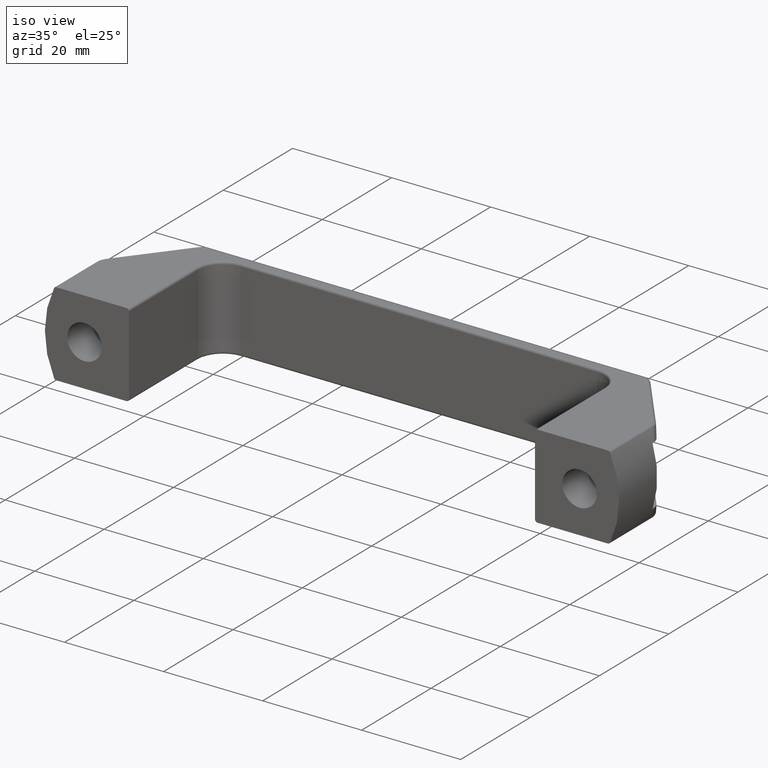
[diagram: clean part render]
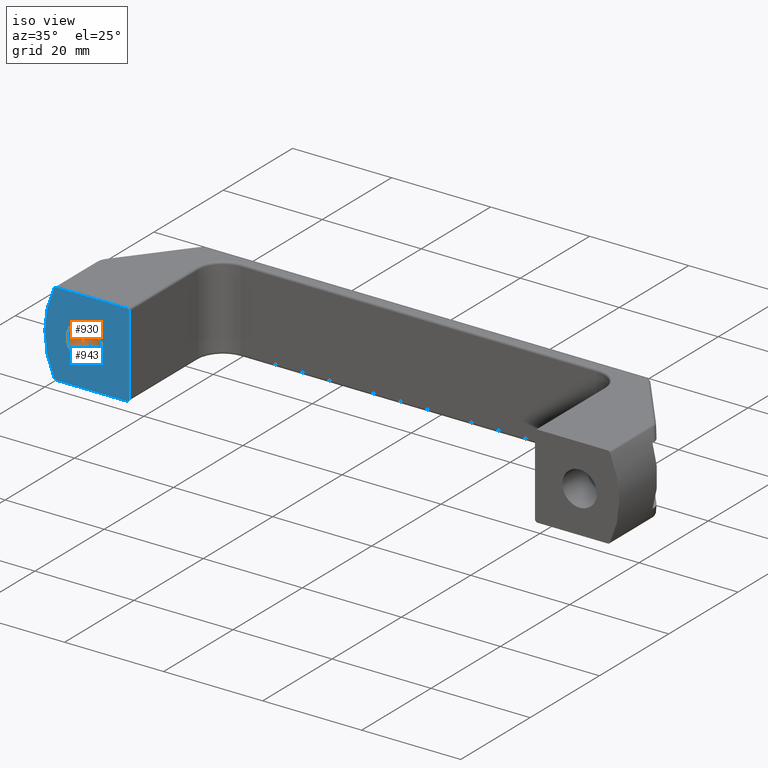
[diagram: same view with the hole feature highlighted: cylindrical wall and planar end face, labeled with their STEP entity ids]
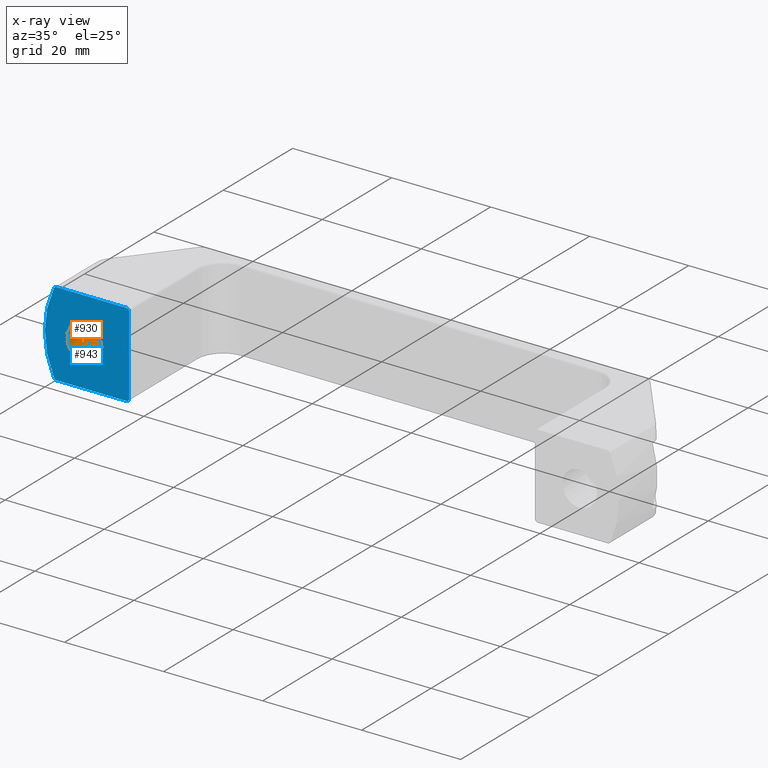
[diagram: x-ray of the same camera — body ghosted, the hole faces saturated]
A machine part, iso view. The highlighted faces form one hole feature of diameter 7 mm: the cylindrical wall (entity #930, orange) and its adjacent planar end face (entity #943, blue) — they share a circular edge in the B-rep.
The next image is the same camera in x-ray (body ghosted, the hole faces saturated) — the bore reads through the body.
Wall:
#198=CYLINDRICAL_SURFACE('',#995,3.5);
#224=FACE_BOUND('',#292,.T.);
#230=FACE_OUTER_BOUND('',#291,.T.);
#291=EDGE_LOOP('',(#642));
#292=EDGE_LOOP('',(#643));
#357=CIRCLE('',#994,3.5);
#358=CIRCLE('',#996,3.5);
#409=VERTEX_POINT('',#1393);
#410=VERTEX_POINT('',#1396);
#497=EDGE_CURVE('',#409,#409,#357,.T.);
#498=EDGE_CURVE('',#410,#410,#358,.T.);
#642=ORIENTED_EDGE('',*,*,#498,.F.);
#643=ORIENTED_EDGE('',*,*,#497,.T.);
#930=ADVANCED_FACE('',(#230,#224),#198,.F.);
#994=AXIS2_PLACEMENT_3D('',#1394,#1111,#1112);
#995=AXIS2_PLACEMENT_3D('',#1395,#1113,#1114);
#996=AXIS2_PLACEMENT_3D('',#1397,#1115,#1116);
#1111=DIRECTION('center_axis',(-1.33226762955019E-15,1.,0.));
#1112=DIRECTION('ref_axis',(1.,1.33226762955019E-15,0.));
#1113=DIRECTION('center_axis',(-1.33226762955019E-15,1.,0.));
#1114=DIRECTION('ref_axis',(1.,1.33226762955019E-15,0.));
#1115=DIRECTION('center_axis',(0.,1.,0.));
#1116=DIRECTION('ref_axis',(1.,1.33226762955019E-15,0.));
#1393=CARTESIAN_POINT('',(11.5,7.07578605720622,-1.11022302462516E-15));
#1394=CARTESIAN_POINT('Origin',(7.99999999999998,7.0757860572062,-1.11022302462516E-15));
#1395=CARTESIAN_POINT('Origin',(8.00000000000013,-110.315253534949,-1.11022302462516E-15));
#1396=CARTESIAN_POINT('',(4.49999999999999,1.31006316905768E-14,-6.81596644923583E-16));
#1397=CARTESIAN_POINT('Origin',(7.99999999999999,1.77635683940025E-14,-1.11022302462516E-15));
End face:
#80=LINE('',#1463,#138);
#82=LINE('',#1467,#140);
#83=LINE('',#1475,#141);
#138=VECTOR('',#1188,16.);
#140=VECTOR('',#1192,14.1876166040718);
#141=VECTOR('',#1199,14.1876166040718);
#186=PLANE('',#1026);
#227=FACE_BOUND('',#308,.T.);
#243=FACE_OUTER_BOUND('',#307,.T.);
#307=EDGE_LOOP('',(#689,#690,#691,#692,#693,#694,#695,#696));
#308=EDGE_LOOP('',(#697));
#358=CIRCLE('',#996,3.5);
#364=CIRCLE('',#1006,0.5);
#376=CIRCLE('',#1027,0.5);
#377=CIRCLE('',#1028,19.0625);
#378=CIRCLE('',#1029,0.5);
#379=CIRCLE('',#1030,0.5);
#410=VERTEX_POINT('',#1396);
#417=VERTEX_POINT('',#1415);
#418=VERTEX_POINT('',#1416);
#433=VERTEX_POINT('',#1462);
#434=VERTEX_POINT('',#1466);
#435=VERTEX_POINT('',#1468);
#436=VERTEX_POINT('',#1470);
#437=VERTEX_POINT('',#1472);
#438=VERTEX_POINT('',#1474);
#498=EDGE_CURVE('',#410,#410,#358,.T.);
#506=EDGE_CURVE('',#417,#418,#364,.T.);
#529=EDGE_CURVE('',#433,#418,#80,.T.);
#531=EDGE_CURVE('',#434,#417,#82,.T.);
#532=EDGE_CURVE('',#435,#434,#376,.T.);
#533=EDGE_CURVE('',#435,#436,#377,.T.);
#534=EDGE_CURVE('',#437,#436,#378,.T.);
#535=EDGE_CURVE('',#438,#437,#83,.T.);
#536=EDGE_CURVE('',#433,#438,#379,.T.);
#689=ORIENTED_EDGE('',*,*,#506,.F.);
#690=ORIENTED_EDGE('',*,*,#531,.F.);
#691=ORIENTED_EDGE('',*,*,#532,.F.);
#692=ORIENTED_EDGE('',*,*,#533,.T.);
#693=ORIENTED_EDGE('',*,*,#534,.F.);
#694=ORIENTED_EDGE('',*,*,#535,.F.);
#695=ORIENTED_EDGE('',*,*,#536,.F.);
#696=ORIENTED_EDGE('',*,*,#529,.T.);
#697=ORIENTED_EDGE('',*,*,#498,.T.);
#943=ADVANCED_FACE('',(#243,#227),#186,.T.);
#996=AXIS2_PLACEMENT_3D('',#1397,#1115,#1116);
#1006=AXIS2_PLACEMENT_3D('',#1417,#1137,#1138);
#1026=AXIS2_PLACEMENT_3D('',#1465,#1190,#1191);
#1027=AXIS2_PLACEMENT_3D('',#1469,#1193,#1194);
#1028=AXIS2_PLACEMENT_3D('',#1471,#1195,#1196);
#1029=AXIS2_PLACEMENT_3D('',#1473,#1197,#1198);
#1030=AXIS2_PLACEMENT_3D('',#1476,#1200,#1201);
#1115=DIRECTION('center_axis',(0.,1.,0.));
#1116=DIRECTION('ref_axis',(1.,1.33226762955019E-15,0.));
#1137=DIRECTION('center_axis',(0.,1.,0.));
#1138=DIRECTION('ref_axis',(0.707106781186546,0.,0.707106781186549));
#1188=DIRECTION('',(0.,0.,1.));
#1190=DIRECTION('center_axis',(0.,-1.,0.));
#1191=DIRECTION('ref_axis',(1.,0.,0.));
#1192=DIRECTION('',(1.,0.,0.));
#1193=DIRECTION('center_axis',(0.,1.,0.));
#1194=DIRECTION('ref_axis',(-0.533396460910442,0.,0.84586536487092));
#1195=DIRECTION('center_axis',(0.,-1.,0.));
#1196=DIRECTION('ref_axis',(-0.895081967213115,0.,0.445901639344262));
#1197=DIRECTION('center_axis',(0.,1.,0.));
#1198=DIRECTION('ref_axis',(-0.533396460910441,0.,-0.845865364870921));
#1199=DIRECTION('',(-1.,0.,0.));
#1200=DIRECTION('center_axis',(0.,1.,0.));
#1201=DIRECTION('ref_axis',(0.707106781186546,0.,-0.707106781186549));
#1396=CARTESIAN_POINT('',(4.49999999999999,1.31006316905768E-14,-6.81596644923583E-16));
#1397=CARTESIAN_POINT('Origin',(7.99999999999999,1.77635683940025E-14,-1.11022302462516E-15));
#1415=CARTESIAN_POINT('',(16.5,0.,8.5));
#1416=CARTESIAN_POINT('',(17.,0.,8.));
#1417=CARTESIAN_POINT('Origin',(16.5,1.11022302462516E-14,8.));
#1462=CARTESIAN_POINT('',(17.,0.,-8.));
#1463=CARTESIAN_POINT('',(17.,0.,0.));
#1465=CARTESIAN_POINT('Origin',(0.,0.,0.));
#1466=CARTESIAN_POINT('',(2.31238339592825,0.,8.5));
#1467=CARTESIAN_POINT('',(0.,0.,8.5));
#1468=CARTESIAN_POINT('',(1.86120180389939,0.,8.21548821548822));
#1469=CARTESIAN_POINT('Origin',(2.31238339592825,0.,8.));
#1470=CARTESIAN_POINT('',(1.86120180389939,0.,-8.21548821548822));
#1471=CARTESIAN_POINT('Origin',(19.0625,0.,0.));
#1472=CARTESIAN_POINT('',(2.31238339592825,0.,-8.5));
#1473=CARTESIAN_POINT('Origin',(2.31238339592825,0.,-8.));
#1474=CARTESIAN_POINT('',(16.5,0.,-8.5));
#1475=CARTESIAN_POINT('',(0.,0.,-8.5));
#1476=CARTESIAN_POINT('Origin',(16.5,1.11022302462516E-14,-8.));